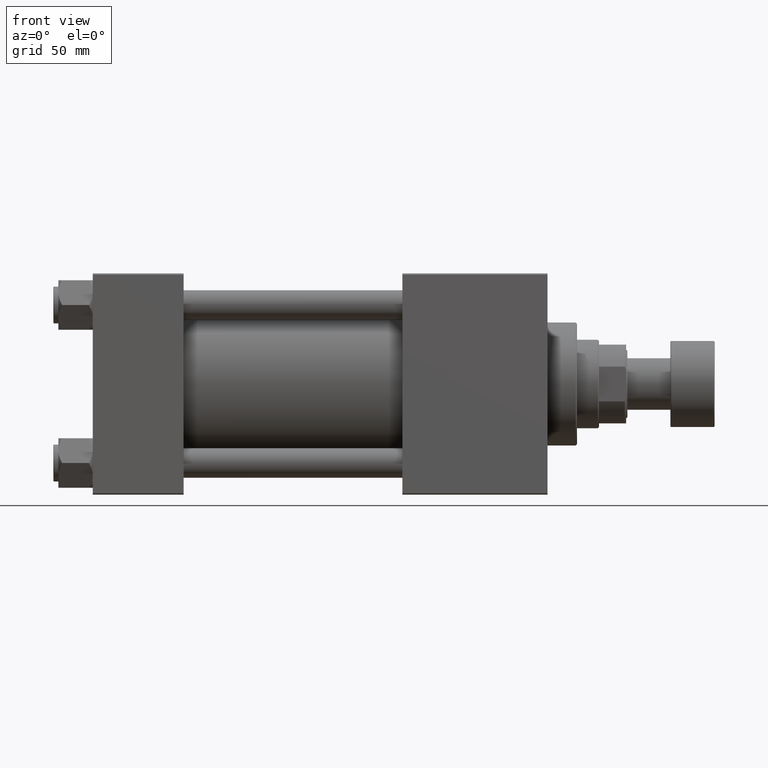
[diagram: clean part render]
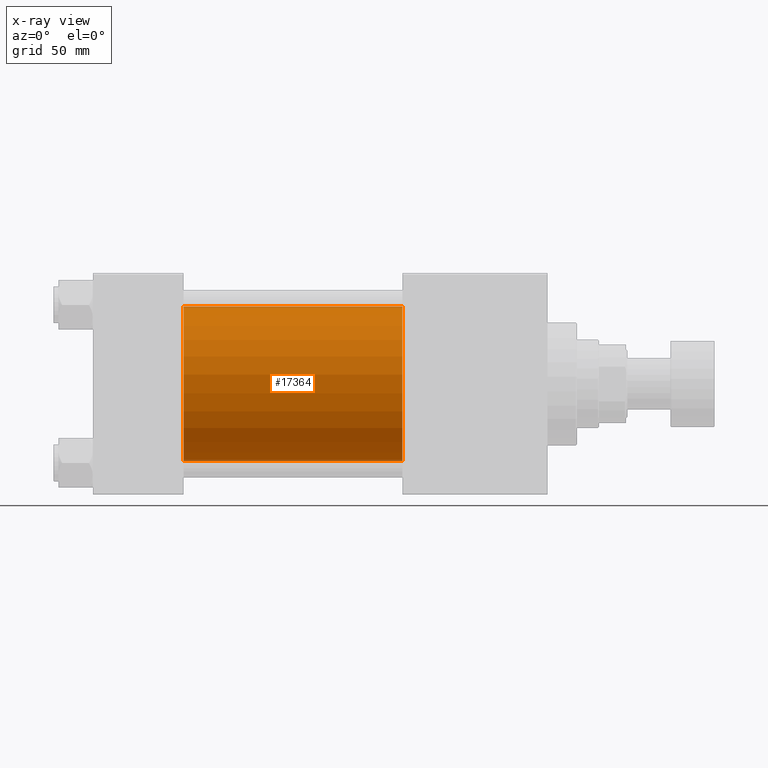
[diagram: x-ray — body ghosted, one internal face saturated and labeled with its STEP entity id]
A machine part, front view, then the same camera in x-ray: the body is ghosted and one INTERNAL B-rep face — a face not visible from any outside direction — is saturated and labeled: STEP entity #17364.
In plain terms, the highlighted cylindrical surface (partial cylindrical patch) has radius 31.5 mm, axis along (-1, -0, -0).
Its self-contained STEP definition (entity closure, byte-faithful):
#3956 = LINE ( 'NONE', #31615, #34924 ) ;
#5313 = DIRECTION ( 'NONE',  ( 1.000000000000000000, 0.000000000000000000, 0.000000000000000000 ) ) ;
#6669 = FACE_OUTER_BOUND ( 'NONE', #41893, .T. ) ;
#6708 = CARTESIAN_POINT ( 'NONE',  ( 37.00000000000000000, -2.602085213965210642E-15, 0.000000000000000000 ) ) ;
#7183 = ORIENTED_EDGE ( 'NONE', *, *, #32464, .T. ) ;
#9171 = CARTESIAN_POINT ( 'NONE',  ( 126.0000000000000000, -2.602085213965210642E-15, 0.000000000000000000 ) ) ;
#9417 = AXIS2_PLACEMENT_3D ( 'NONE', #37176, #29469, #49203 ) ;
#10257 = VECTOR ( 'NONE', #49927, 1000.000000000000000 ) ;
#14179 = CARTESIAN_POINT ( 'NONE',  ( 37.00000000000000000, 1.255552203348951850E-15, -31.50000000000000000 ) ) ;
#14339 = VERTEX_POINT ( 'NONE', #33898 ) ;
#16261 = CARTESIAN_POINT ( 'NONE',  ( 126.0000000000000000, -2.602085213965210642E-15, 31.50000000000000000 ) ) ;
#17364 = ADVANCED_FACE ( 'NONE', ( #6669 ), #45095, .F. ) ;
#18791 = AXIS2_PLACEMENT_3D ( 'NONE', #9171, #5313, #20934 ) ;
#20934 = DIRECTION ( 'NONE',  ( 0.000000000000000000, 0.000000000000000000, -1.000000000000000000 ) ) ;
#21238 = CIRCLE ( 'NONE', #18791, 31.50000000000000000 ) ;
#22116 = EDGE_CURVE ( 'NONE', #14339, #35701, #3956, .T. ) ;
#23481 = VERTEX_POINT ( 'NONE', #16261 ) ;
#26904 = ORIENTED_EDGE ( 'NONE', *, *, #22116, .T. ) ;
#29469 = DIRECTION ( 'NONE',  ( -1.000000000000000000, -0.000000000000000000, -0.000000000000000000 ) ) ;
#30307 = CARTESIAN_POINT ( 'NONE',  ( 37.00000000000000000, -2.602085213965210642E-15, 31.50000000000000000 ) ) ;
#30694 = CARTESIAN_POINT ( 'NONE',  ( 126.0000000000000000, -2.602085213965210642E-15, 31.50000000000000000 ) ) ;
#31615 = CARTESIAN_POINT ( 'NONE',  ( 126.0000000000000000, 1.255552203348951850E-15, -31.50000000000000000 ) ) ;
#31869 = DIRECTION ( 'NONE',  ( -1.000000000000000000, -0.000000000000000000, -0.000000000000000000 ) ) ;
#32464 = EDGE_CURVE ( 'NONE', #23481, #14339, #21238, .T. ) ;
#32763 = EDGE_CURVE ( 'NONE', #35796, #35701, #38455, .T. ) ;
#33898 = CARTESIAN_POINT ( 'NONE',  ( 126.0000000000000000, 1.255552203348951850E-15, -31.50000000000000000 ) ) ;
#34618 = DIRECTION ( 'NONE',  ( 0.000000000000000000, 0.000000000000000000, -1.000000000000000000 ) ) ;
#34924 = VECTOR ( 'NONE', #31869, 1000.000000000000000 ) ;
#35056 = LINE ( 'NONE', #30694, #10257 ) ;
#35701 = VERTEX_POINT ( 'NONE', #14179 ) ;
#35796 = VERTEX_POINT ( 'NONE', #30307 ) ;
#37176 = CARTESIAN_POINT ( 'NONE',  ( 126.0000000000000000, -2.602085213965210642E-15, 0.000000000000000000 ) ) ;
#37890 = ORIENTED_EDGE ( 'NONE', *, *, #43349, .F. ) ;
#38455 = CIRCLE ( 'NONE', #41737, 31.50000000000000000 ) ;
#38485 = DIRECTION ( 'NONE',  ( 1.000000000000000000, 0.000000000000000000, 0.000000000000000000 ) ) ;
#41737 = AXIS2_PLACEMENT_3D ( 'NONE', #6708, #38485, #34618 ) ;
#41881 = ORIENTED_EDGE ( 'NONE', *, *, #32763, .F. ) ;
#41893 = EDGE_LOOP ( 'NONE', ( #7183, #26904, #41881, #37890 ) ) ;
#43349 = EDGE_CURVE ( 'NONE', #23481, #35796, #35056, .T. ) ;
#45095 = CYLINDRICAL_SURFACE ( 'NONE', #9417, 31.50000000000000000 ) ;
#49203 = DIRECTION ( 'NONE',  ( 0.000000000000000000, 0.000000000000000000, 1.000000000000000000 ) ) ;
#49927 = DIRECTION ( 'NONE',  ( -1.000000000000000000, -0.000000000000000000, -0.000000000000000000 ) ) ;